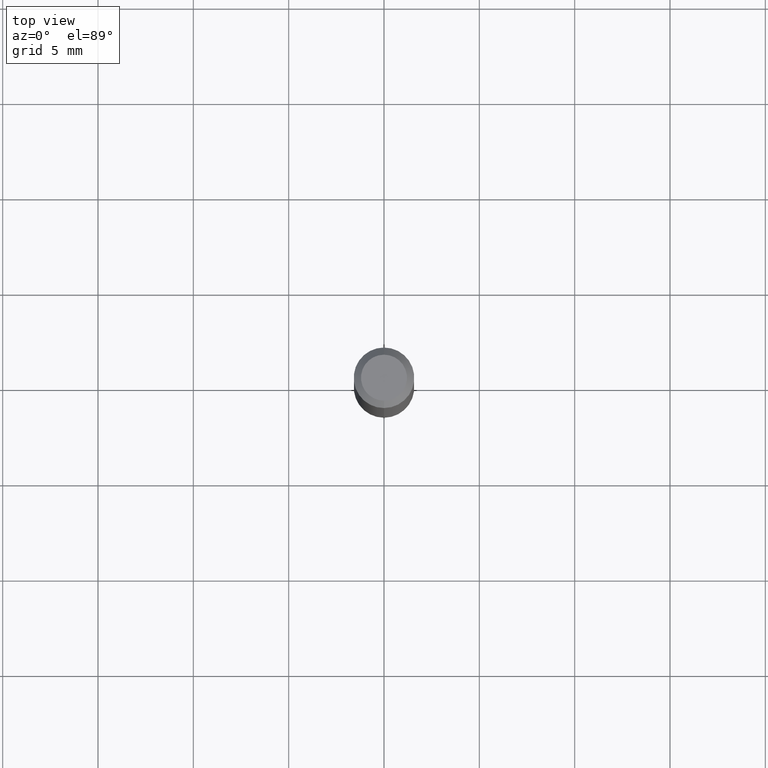
[diagram: clean part render]
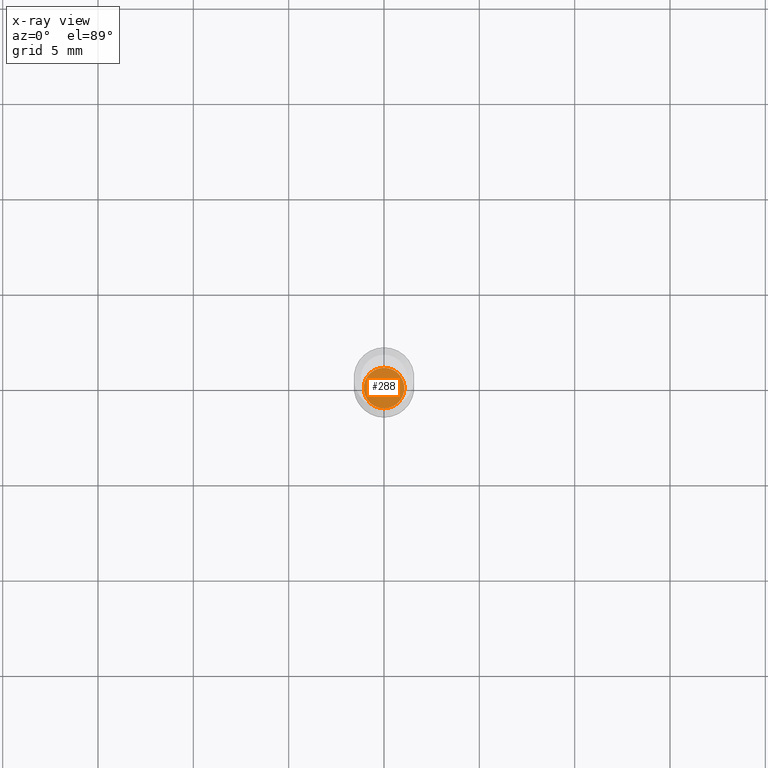
[diagram: x-ray — body ghosted, one internal face saturated and labeled with its STEP entity id]
A machine part, top view, then the same camera in x-ray: the body is ghosted and one INTERNAL B-rep face — a face not visible from any outside direction — is saturated and labeled: STEP entity #288.
In plain terms, the highlighted planar face has unit normal (-0, 0, 1).
Its self-contained STEP definition (entity closure, byte-faithful):
#17 = CARTESIAN_POINT ( 'NONE',  ( -2.932844324627926808E-16, -0.04200000000000434636, -1.244999999999999885 ) ) ;
#84 = CARTESIAN_POINT ( 'NONE',  ( 3.044702396709137897E-29, -4.346760035856390206E-15, -1.245000000000000329 ) ) ;
#130 = DIRECTION ( 'NONE',  ( -2.445544093742278605E-29, 3.491373522776216420E-15, 1.000000000000000000 ) ) ;
#134 = AXIS2_PLACEMENT_3D ( 'NONE', #195, #353, #385 ) ;
#135 = DIRECTION ( 'NONE',  ( -2.445544093742278325E-29, 3.491373522776216420E-15, 1.000000000000000000 ) ) ;
#171 = EDGE_CURVE ( 'NONE', #285, #369, #276, .T. ) ;
#195 = CARTESIAN_POINT ( 'NONE',  ( 3.044702396709137897E-29, -4.346760035856390206E-15, -1.245000000000000329 ) ) ;
#223 = AXIS2_PLACEMENT_3D ( 'NONE', #84, #135, #363 ) ;
#231 = AXIS2_PLACEMENT_3D ( 'NONE', #287, #130, #479 ) ;
#250 = PLANE ( 'NONE',  #223 ) ;
#257 = ORIENTED_EDGE ( 'NONE', *, *, #171, .F. ) ;
#264 = EDGE_CURVE ( 'NONE', #369, #285, #316, .T. ) ;
#276 = CIRCLE ( 'NONE', #134, 0.04199999999999999567 ) ;
#285 = VERTEX_POINT ( 'NONE', #318 ) ;
#287 = CARTESIAN_POINT ( 'NONE',  ( 3.044702396709137897E-29, -4.346760035856390206E-15, -1.245000000000000329 ) ) ;
#288 = ADVANCED_FACE ( 'NONE', ( #433 ), #250, .F. ) ;
#316 = CIRCLE ( 'NONE', #231, 0.04199999999999999567 ) ;
#318 = CARTESIAN_POINT ( 'NONE',  ( 3.002043058586724733E-16, 0.04199999999999565192, -1.245000000000000551 ) ) ;
#353 = DIRECTION ( 'NONE',  ( -2.445544093742278605E-29, 3.491373522776216420E-15, 1.000000000000000000 ) ) ;
#363 = DIRECTION ( 'NONE',  ( -6.982962677686265922E-15, -1.000000000000000000, 3.491373522776216420E-15 ) ) ;
#369 = VERTEX_POINT ( 'NONE', #17 ) ;
#385 = DIRECTION ( 'NONE',  ( -6.982962677686265922E-15, -1.000000000000000000, 6.504399984914913214E-15 ) ) ;
#392 = EDGE_LOOP ( 'NONE', ( #482, #257 ) ) ;
#433 = FACE_OUTER_BOUND ( 'NONE', #392, .T. ) ;
#479 = DIRECTION ( 'NONE',  ( -6.982962677686265922E-15, -1.000000000000000000, 6.504399984914913214E-15 ) ) ;
#482 = ORIENTED_EDGE ( 'NONE', *, *, #264, .F. ) ;